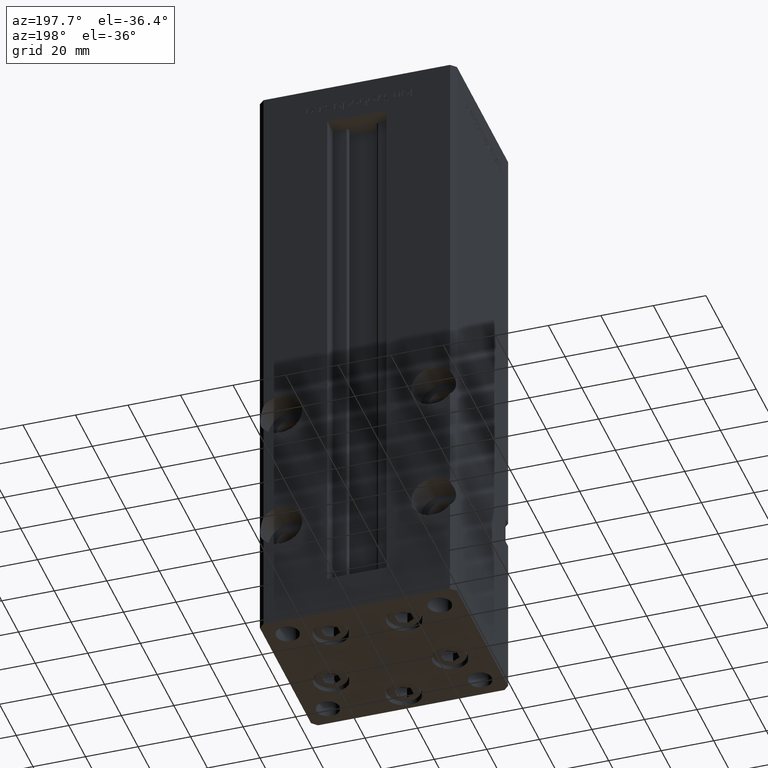
[diagram: clean part render]
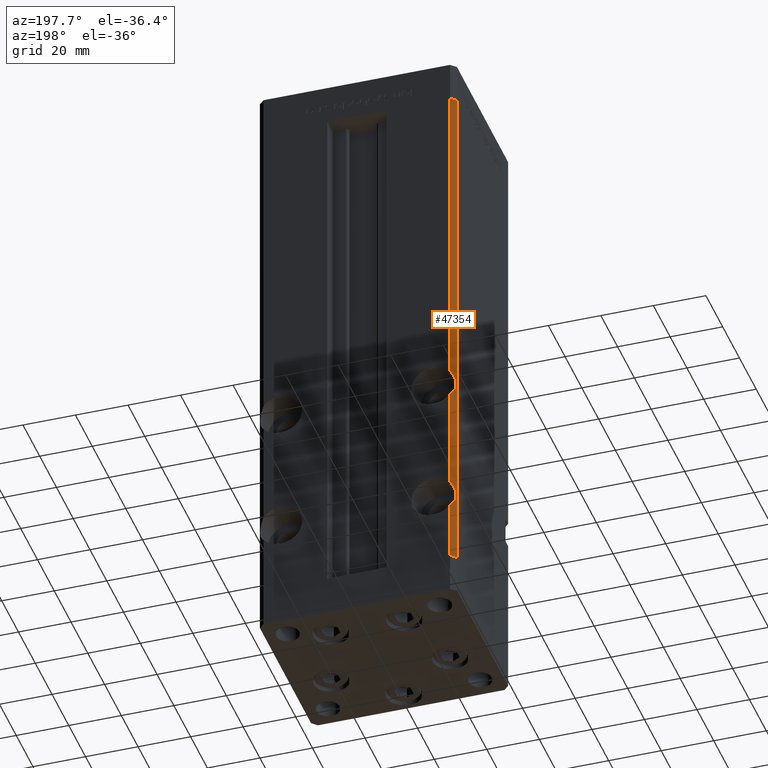
[diagram: same view with one face highlighted and labeled with its STEP entity id]
A machine part, auxiliary view. The second image highlights one B-rep face of the part: STEP entity #47354.
In plain terms, the highlighted planar face has unit normal (0.7071, -0.7071, 0).
Its self-contained STEP definition (entity closure, byte-faithful):
#2126 = LINE ( 'NONE', #23329, #44689 ) ;
#2275 = VERTEX_POINT ( 'NONE', #40409 ) ;
#4045 = LINE ( 'NONE', #29022, #7539 ) ;
#4589 = ORIENTED_EDGE ( 'NONE', *, *, #17423, .T. ) ;
#7539 = VECTOR ( 'NONE', #41126, 1000.000000000000000 ) ;
#9237 = DIRECTION ( 'NONE',  ( 0.7071067811865505703, 0.7071067811865444641, 0.000000000000000000 ) ) ;
#9367 = DIRECTION ( 'NONE',  ( -0.7071067811865506814, -0.7071067811865443531, 0.000000000000000000 ) ) ;
#10446 = VERTEX_POINT ( 'NONE', #33880 ) ;
#11830 = ORIENTED_EDGE ( 'NONE', *, *, #51050, .T. ) ;
#12034 = CARTESIAN_POINT ( 'NONE',  ( -35.50000000000000711, 32.50000000000000000, 22.91939964177461420 ) ) ;
#12046 = DIRECTION ( 'NONE',  ( -0.000000000000000000, -0.000000000000000000, -1.000000000000000000 ) ) ;
#12121 = EDGE_CURVE ( 'NONE', #48834, #31560, #28921, .T. ) ;
#13426 = CARTESIAN_POINT ( 'NONE',  ( -35.50000000000000711, 32.50000000000000000, 72.91939964177460354 ) ) ;
#13483 = CARTESIAN_POINT ( 'NONE',  ( -35.50000000000000711, 32.50000000000000000, 22.91939964177461420 ) ) ;
#14275 = CARTESIAN_POINT ( 'NONE',  ( -35.50000000000000711, 32.50000000000000000, 206.0000000000000000 ) ) ;
#14736 = ORIENTED_EDGE ( 'NONE', *, *, #23003, .T. ) ;
#16066 = CARTESIAN_POINT ( 'NONE',  ( -37.92941176470587550, 30.07058823529415292, 29.97246837436984990 ) ) ;
#16079 = ORIENTED_EDGE ( 'NONE', *, *, #45822, .T. ) ;
#16370 = EDGE_CURVE ( 'NONE', #45369, #18636, #16843, .T. ) ;
#16843 = LINE ( 'NONE', #50731, #27197 ) ;
#17423 = EDGE_CURVE ( 'NONE', #31560, #39503, #20193, .T. ) ;
#18636 = VERTEX_POINT ( 'NONE', #36459 ) ;
#20193 =( BOUNDED_CURVE ( )  B_SPLINE_CURVE ( 3, ( #28970, #49162, #48376, #32744 ),
 .UNSPECIFIED., .F., .F. ) 
 B_SPLINE_CURVE_WITH_KNOTS ( ( 4, 4 ),
 ( 2.478153219352369874, 3.805032087827216358 ),
 .UNSPECIFIED. ) 
 CURVE ( )  GEOMETRIC_REPRESENTATION_ITEM ( )  RATIONAL_B_SPLINE_CURVE ( ( 1.000000000000000000, 0.8585858585858592296, 0.8585858585858592296, 1.000000000000000000 ) ) 
 REPRESENTATION_ITEM ( '' )  );
#21123 = DIRECTION ( 'NONE',  ( -0.000000000000000000, -0.000000000000000000, -1.000000000000000000 ) ) ;
#21645 = CARTESIAN_POINT ( 'NONE',  ( -35.50000000000000711, 32.50000000000000000, 206.0000000000000000 ) ) ;
#21995 = VERTEX_POINT ( 'NONE', #13483 ) ;
#22885 = EDGE_LOOP ( 'NONE', ( #26545, #4589, #16079, #49417, #14736, #11830, #36312, #23629 ) ) ;
#23003 = EDGE_CURVE ( 'NONE', #21995, #10446, #36506, .T. ) ;
#23329 = CARTESIAN_POINT ( 'NONE',  ( -35.50000000000000711, 32.50000000000000000, 206.0000000000000000 ) ) ;
#23629 = ORIENTED_EDGE ( 'NONE', *, *, #35373, .F. ) ;
#24058 = PLANE ( 'NONE',  #51401 ) ;
#24128 = CARTESIAN_POINT ( 'NONE',  ( -35.50000000000000711, 32.50000000000000000, 33.08060035822537515 ) ) ;
#24136 = CARTESIAN_POINT ( 'NONE',  ( -35.50000000000000711, 32.50000000000000000, 83.08060035822536804 ) ) ;
#24880 = VECTOR ( 'NONE', #9367, 1000.000000000000114 ) ;
#25535 = VECTOR ( 'NONE', #12046, 1000.000000000000000 ) ;
#26545 = ORIENTED_EDGE ( 'NONE', *, *, #12121, .T. ) ;
#27197 = VECTOR ( 'NONE', #34312, 1000.000000000000000 ) ;
#28921 = LINE ( 'NONE', #21645, #38209 ) ;
#28970 = CARTESIAN_POINT ( 'NONE',  ( -35.50000000000000711, 32.50000000000000000, 83.08060035822536804 ) ) ;
#29022 = CARTESIAN_POINT ( 'NONE',  ( -35.50000000000000711, 32.50000000000000000, 206.0000000000000000 ) ) ;
#31560 = VERTEX_POINT ( 'NONE', #24136 ) ;
#32393 = CARTESIAN_POINT ( 'NONE',  ( -35.50000000000000711, 32.50000000000000000, 206.0000000000000000 ) ) ;
#32744 = CARTESIAN_POINT ( 'NONE',  ( -35.50000000000000711, 32.50000000000000000, 72.91939964177460354 ) ) ;
#33880 = CARTESIAN_POINT ( 'NONE',  ( -35.50000000000000711, 32.50000000000000000, 0.000000000000000000 ) ) ;
#34312 = DIRECTION ( 'NONE',  ( -0.000000000000000000, -0.000000000000000000, -1.000000000000000000 ) ) ;
#34380 = DIRECTION ( 'NONE',  ( -0.7071067811865506814, -0.7071067811865443531, 0.000000000000000000 ) ) ;
#34523 = CARTESIAN_POINT ( 'NONE',  ( -37.50000000000001421, 30.50000000000001066, 206.0000000000000000 ) ) ;
#35373 = EDGE_CURVE ( 'NONE', #48834, #45369, #2126, .T. ) ;
#36312 = ORIENTED_EDGE ( 'NONE', *, *, #16370, .F. ) ;
#36459 = CARTESIAN_POINT ( 'NONE',  ( -37.50000000000001421, 30.50000000000001066, 0.000000000000000000 ) ) ;
#36506 = LINE ( 'NONE', #41076, #25535 ) ;
#37079 = LINE ( 'NONE', #41373, #24880 ) ;
#38007 = DIRECTION ( 'NONE',  ( 0.7071067811865444641, -0.7071067811865505703, 0.000000000000000000 ) ) ;
#38209 = VECTOR ( 'NONE', #21123, 1000.000000000000000 ) ;
#39503 = VERTEX_POINT ( 'NONE', #13426 ) ;
#40409 = CARTESIAN_POINT ( 'NONE',  ( -35.50000000000000711, 32.50000000000000000, 33.08060035822537515 ) ) ;
#41076 = CARTESIAN_POINT ( 'NONE',  ( -35.50000000000000711, 32.50000000000000000, 206.0000000000000000 ) ) ;
#41126 = DIRECTION ( 'NONE',  ( -0.000000000000000000, -0.000000000000000000, -1.000000000000000000 ) ) ;
#41373 = CARTESIAN_POINT ( 'NONE',  ( -35.50000000000000711, 32.50000000000000000, 0.000000000000000000 ) ) ;
#42183 =( BOUNDED_CURVE ( )  B_SPLINE_CURVE ( 3, ( #24128, #16066, #48890, #12034 ),
 .UNSPECIFIED., .F., .F. ) 
 B_SPLINE_CURVE_WITH_KNOTS ( ( 4, 4 ),
 ( 2.478153219352369874, 3.805032087827215914 ),
 .UNSPECIFIED. ) 
 CURVE ( )  GEOMETRIC_REPRESENTATION_ITEM ( )  RATIONAL_B_SPLINE_CURVE ( ( 1.000000000000000000, 0.8585858585858592296, 0.8585858585858592296, 1.000000000000000000 ) ) 
 REPRESENTATION_ITEM ( '' )  );
#44501 = FACE_OUTER_BOUND ( 'NONE', #22885, .T. ) ;
#44689 = VECTOR ( 'NONE', #34380, 1000.000000000000114 ) ;
#45369 = VERTEX_POINT ( 'NONE', #34523 ) ;
#45822 = EDGE_CURVE ( 'NONE', #39503, #2275, #4045, .T. ) ;
#47354 = ADVANCED_FACE ( 'NONE', ( #44501 ), #24058, .F. ) ;
#48207 = EDGE_CURVE ( 'NONE', #2275, #21995, #42183, .T. ) ;
#48376 = CARTESIAN_POINT ( 'NONE',  ( -37.92941176470587550, 30.07058823529415292, 76.02753162563016076 ) ) ;
#48834 = VERTEX_POINT ( 'NONE', #14275 ) ;
#48890 = CARTESIAN_POINT ( 'NONE',  ( -37.92941176470587550, 30.07058823529414582, 26.02753162563014300 ) ) ;
#49162 = CARTESIAN_POINT ( 'NONE',  ( -37.92941176470587550, 30.07058823529415292, 79.97246837436986766 ) ) ;
#49417 = ORIENTED_EDGE ( 'NONE', *, *, #48207, .T. ) ;
#50731 = CARTESIAN_POINT ( 'NONE',  ( -37.50000000000001421, 30.50000000000001066, 206.0000000000000000 ) ) ;
#51050 = EDGE_CURVE ( 'NONE', #10446, #18636, #37079, .T. ) ;
#51401 = AXIS2_PLACEMENT_3D ( 'NONE', #32393, #38007, #9237 ) ;